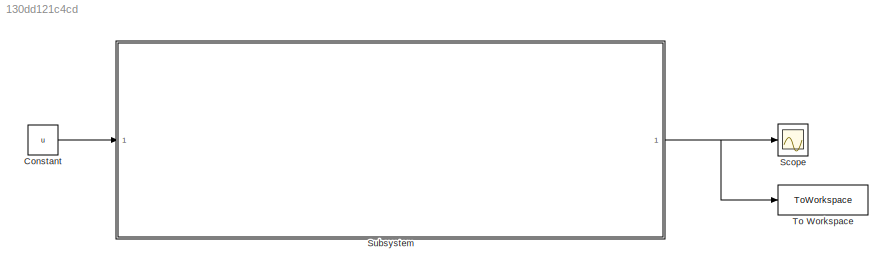
MODEL slx_130dd121c4cd
KIND model
CONFIG AbsTol = auto
CONFIG EnableMultiTasking = off
CONFIG FixedStep = auto
CONFIG MaxStep = auto
CONFIG MinStep = auto
CONFIG RelTol = 1e-3
CONFIG SampleTimeConstraint = Unconstrained
CONFIG SolverName = VariableStepAuto
CONFIG StartTime = 0.0
CONFIG StopTime = 10.0
BLOCK [Constant] Constant
  Value = u
BLOCK [Scope] Scope
  Floating = off
  NumInputPorts = 1
  ScopeSpecificationString = Simulink.scopes.TimeScopeBlockCfg('CurrentConfiguration', extmgr.ConfigurationSet(extmgr.Configuration('Core','General UI',true),extmgr.Configuration('Core','Source UI',true),extmgr.Configuration('Sources','WiredSimulink',true),extmgr.Configuration('Visuals','Time Domain',true),extmgr.Configuration('Tools','Plot Navigation',true),extmgr.Configuration('Tools','Measurements',true)),'Version','2024b'...<+1ch>
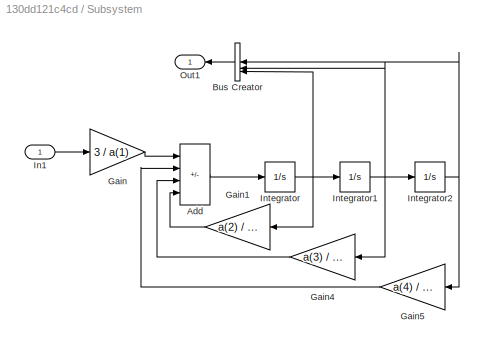
BLOCK [SubSystem] Subsystem
BLOCK [Sum] Subsystem/Add
  IconShape = rectangular
  Inputs = +---
BLOCK [BusCreator] Subsystem/Bus Creator
  DisplayOption = bar
  InheritFromInputs = on
  Inputs = 3
  NameLocation = top
BLOCK [Gain] Subsystem/Gain
  Gain = 3 / a(1)
BLOCK [Gain] Subsystem/Gain1
  Gain = a(2) / a(1)
  NameLocation = top
BLOCK [Gain] Subsystem/Gain4
  Gain = a(3) / a(1)
  NameLocation = top
BLOCK [Gain] Subsystem/Gain5
  Gain = a(4) / a(1)
  NameLocation = top
BLOCK [Inport] Subsystem/In1
BLOCK [Integrator] Subsystem/Integrator
  InitialCondition = p(3)
BLOCK [Integrator] Subsystem/Integrator1
  InitialCondition = p(2)
BLOCK [Integrator] Subsystem/Integrator2
  InitialCondition = p(1)
BLOCK [Outport] Subsystem/Out1
  NameLocation = top
BLOCK [ToWorkspace] To Workspace
  FixptAsFi = on
  MaxDataPoints = inf
  SampleTime = -1
  SaveFormat = Timeseries
  VariableName = simout
LINE Constant:1 -> Subsystem:1
LINE Subsystem/Add:1 -> Subsystem/Integrator:1
LINE Subsystem/Bus Creator:1 -> Subsystem/Out1:1
LINE Subsystem/Gain1:1 -> Subsystem/Add:4
LINE Subsystem/Gain4:1 -> Subsystem/Add:3
LINE Subsystem/Gain5:1 -> Subsystem/Add:2
LINE Subsystem/Gain:1 -> Subsystem/Add:1
LINE Subsystem/In1:1 -> Subsystem/Gain:1
NET Subsystem/Integrator1:1 -> Subsystem/Bus Creator:2, Subsystem/Gain4:1, Subsystem/Integrator2:1
NET Subsystem/Integrator2:1 -> Subsystem/Bus Creator:1, Subsystem/Gain5:1
NET Subsystem/Integrator:1 -> Subsystem/Bus Creator:3, Subsystem/Gain1:1, Subsystem/Integrator1:1
NET Subsystem:1 -> Scope:1, To Workspace:1
note: NET lines group one-source signal fan-out (src -> all destinations, sorted); 1:1 wires keep LINE
